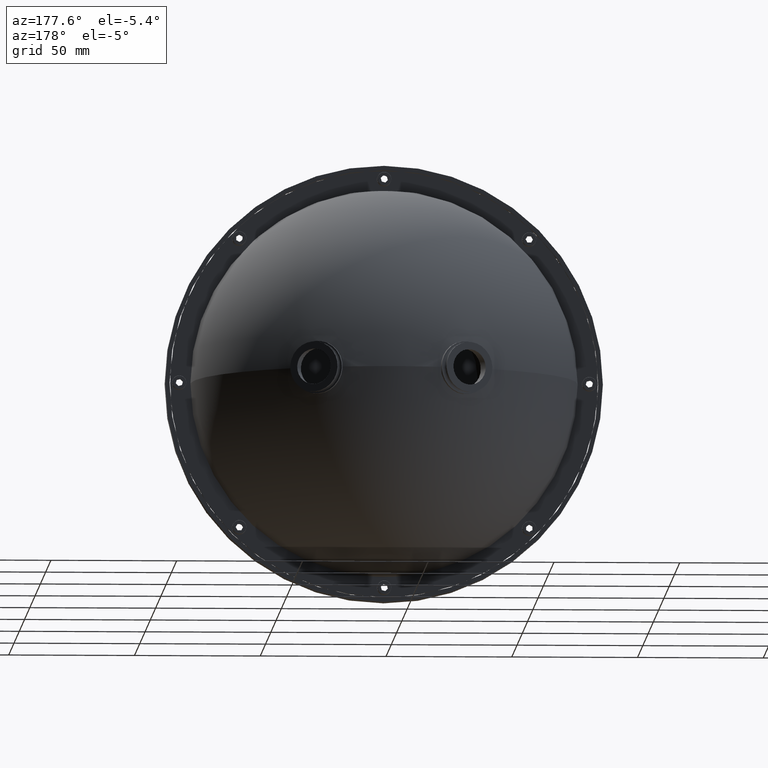
[diagram: clean part render]
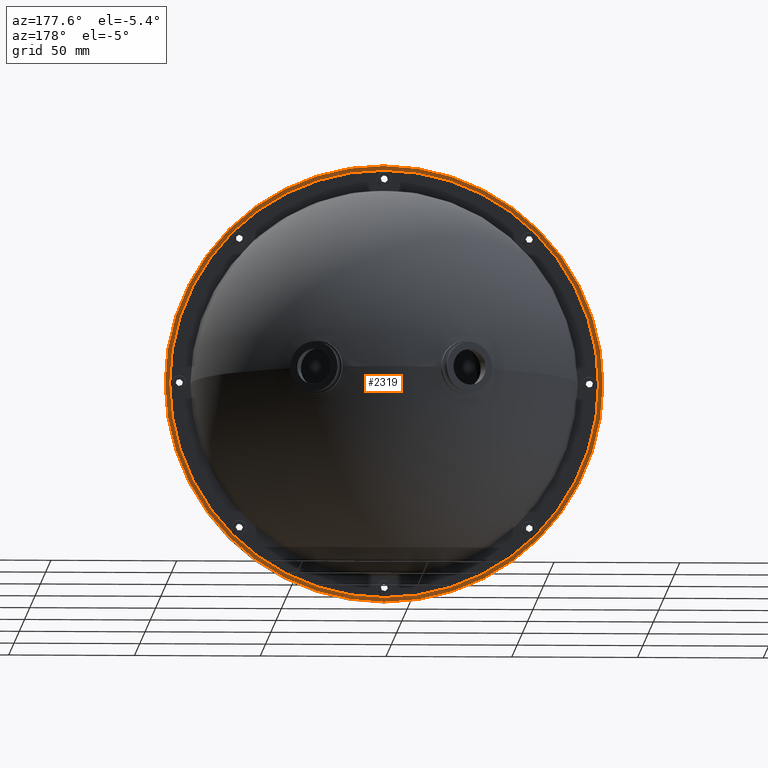
[diagram: same view with one face highlighted and labeled with its STEP entity id]
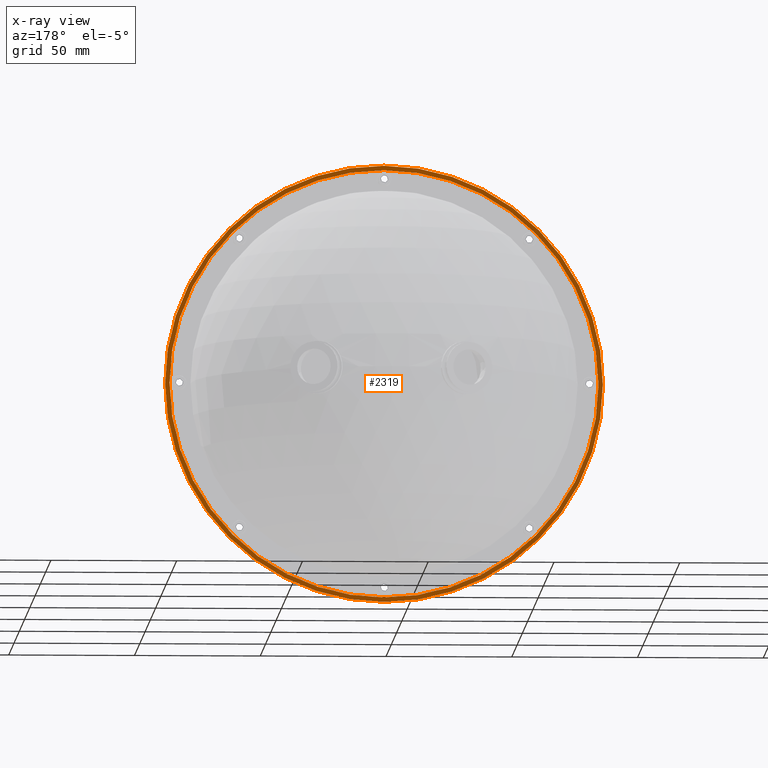
[diagram: x-ray of the same camera — body ghosted, the highlighted face saturated]
A machine part, auxiliary view. The second image highlights one B-rep face of the part: STEP entity #2319.
The next image is the same camera in x-ray: the body ghosted, the highlighted face saturated — about 0% of this face is hidden behind the body in this view.
In plain terms, the highlighted planar face has unit normal (0, 1, 0).
Its self-contained STEP definition (entity closure, byte-faithful):
#22 = CARTESIAN_POINT ( 'NONE',  ( 8.484018949608364224, -16.21086588718419819, 2.914335439641035919E-13 ) ) ;
#221 = DIRECTION ( 'NONE',  ( 0.000000000000000000, -0.000000000000000000, 1.000000000000000000 ) ) ;
#231 = CARTESIAN_POINT ( 'NONE',  ( 8.484018949608373106, -16.21086588718419819, 87.00000000000028422 ) ) ;
#345 = CARTESIAN_POINT ( 'NONE',  ( 8.484018949608364224, -16.21086588718419819, 2.914335439641035919E-13 ) ) ;
#642 = ORIENTED_EDGE ( 'NONE', *, *, #6329, .T. ) ;
#776 = AXIS2_PLACEMENT_3D ( 'NONE', #5670, #3360, #221 ) ;
#794 = CARTESIAN_POINT ( 'NONE',  ( 8.484018949608364224, -16.21086588718419819, 2.914335439641035919E-13 ) ) ;
#818 = FACE_BOUND ( 'NONE', #6938, .T. ) ;
#872 = EDGE_LOOP ( 'NONE', ( #642, #3072 ) ) ;
#925 = FACE_OUTER_BOUND ( 'NONE', #872, .T. ) ;
#1166 = AXIS2_PLACEMENT_3D ( 'NONE', #2043, #4469, #1525 ) ;
#1525 = DIRECTION ( 'NONE',  ( 0.000000000000000000, 0.000000000000000000, 1.000000000000000000 ) ) ;
#1809 = VERTEX_POINT ( 'NONE', #6829 ) ;
#2043 = CARTESIAN_POINT ( 'NONE',  ( 8.484018949608364224, -16.21086588718419819, 2.914335439641035919E-13 ) ) ;
#2319 = ADVANCED_FACE ( 'NONE', ( #818, #925 ), #3249, .T. ) ;
#2760 = EDGE_CURVE ( 'NONE', #3875, #7414, #2938, .T. ) ;
#2938 = CIRCLE ( 'NONE', #1166, 85.25000000000000000 ) ;
#3027 = CIRCLE ( 'NONE', #3157, 87.00000000000000000 ) ;
#3072 = ORIENTED_EDGE ( 'NONE', *, *, #4356, .T. ) ;
#3157 = AXIS2_PLACEMENT_3D ( 'NONE', #22, #7770, #4240 ) ;
#3181 = DIRECTION ( 'NONE',  ( 0.000000000000000000, 1.000000000000000000, 0.000000000000000000 ) ) ;
#3249 = PLANE ( 'NONE',  #776 ) ;
#3266 = DIRECTION ( 'NONE',  ( 0.000000000000000000, 0.000000000000000000, 1.000000000000000000 ) ) ;
#3360 = DIRECTION ( 'NONE',  ( 0.000000000000000000, 1.000000000000000000, 0.000000000000000000 ) ) ;
#3612 = CIRCLE ( 'NONE', #4747, 85.25000000000000000 ) ;
#3618 = ORIENTED_EDGE ( 'NONE', *, *, #2760, .F. ) ;
#3875 = VERTEX_POINT ( 'NONE', #4750 ) ;
#4240 = DIRECTION ( 'NONE',  ( 0.000000000000000000, 0.000000000000000000, 1.000000000000000000 ) ) ;
#4356 = EDGE_CURVE ( 'NONE', #5452, #1809, #7682, .T. ) ;
#4469 = DIRECTION ( 'NONE',  ( 0.000000000000000000, 1.000000000000000000, 0.000000000000000000 ) ) ;
#4584 = EDGE_CURVE ( 'NONE', #7414, #3875, #3612, .T. ) ;
#4747 = AXIS2_PLACEMENT_3D ( 'NONE', #345, #5195, #3266 ) ;
#4750 = CARTESIAN_POINT ( 'NONE',  ( 8.484018949608373106, -16.21086588718419819, -85.24999999999971578 ) ) ;
#4895 = AXIS2_PLACEMENT_3D ( 'NONE', #794, #3181, #6709 ) ;
#5195 = DIRECTION ( 'NONE',  ( 0.000000000000000000, 1.000000000000000000, 0.000000000000000000 ) ) ;
#5452 = VERTEX_POINT ( 'NONE', #231 ) ;
#5670 = CARTESIAN_POINT ( 'NONE',  ( 8.484018949608364224, -16.21086588718419819, 2.914335439641035919E-13 ) ) ;
#6166 = CARTESIAN_POINT ( 'NONE',  ( 8.484018949608364224, -16.21086588718419819, 85.25000000000029843 ) ) ;
#6329 = EDGE_CURVE ( 'NONE', #1809, #5452, #3027, .T. ) ;
#6701 = ORIENTED_EDGE ( 'NONE', *, *, #4584, .F. ) ;
#6709 = DIRECTION ( 'NONE',  ( 0.000000000000000000, 0.000000000000000000, 1.000000000000000000 ) ) ;
#6829 = CARTESIAN_POINT ( 'NONE',  ( 8.484018949608364224, -16.21086588718419819, -86.99999999999970157 ) ) ;
#6938 = EDGE_LOOP ( 'NONE', ( #6701, #3618 ) ) ;
#7414 = VERTEX_POINT ( 'NONE', #6166 ) ;
#7682 = CIRCLE ( 'NONE', #4895, 87.00000000000000000 ) ;
#7770 = DIRECTION ( 'NONE',  ( 0.000000000000000000, 1.000000000000000000, 0.000000000000000000 ) ) ;